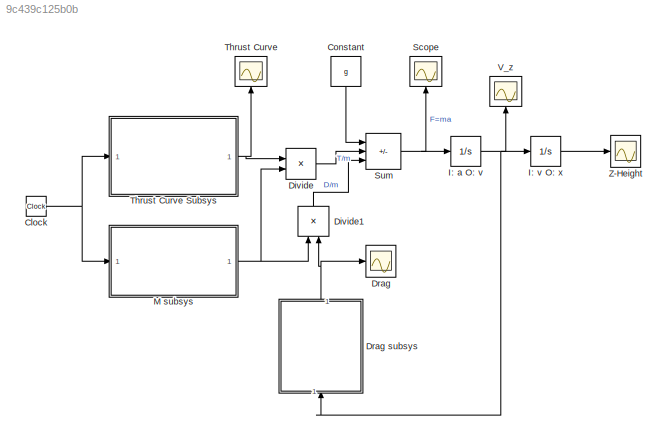
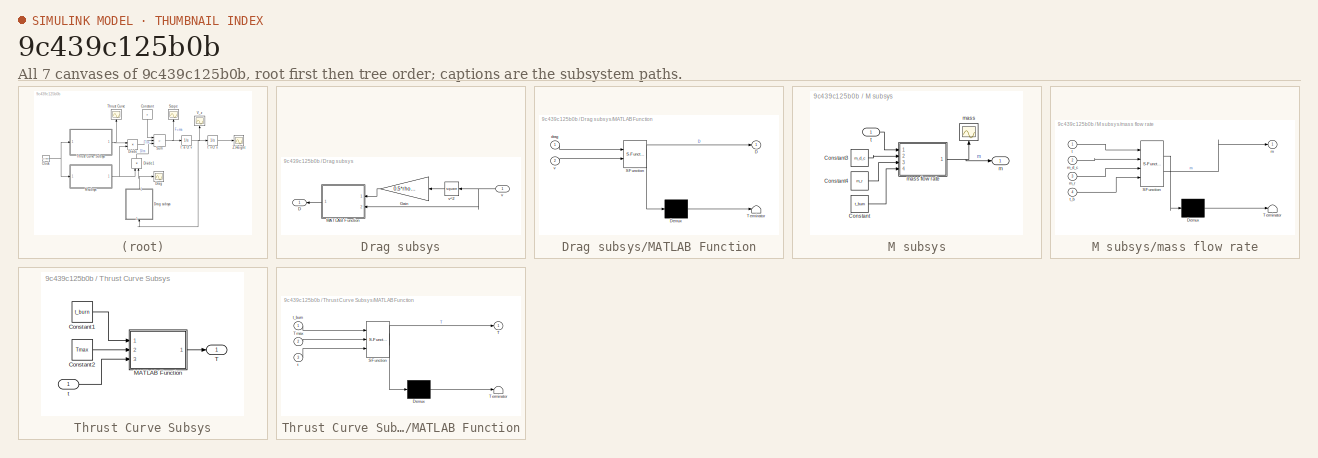
[diagram: thumbnail index - all 7 canvases of the model, root first then tree order]
MODEL slx_9c439c125b0b
KIND model
CONFIG AbsTol = auto
CONFIG EnableMultiTasking = off
CONFIG FixedStep = auto
CONFIG MaxStep = 0.54
CONFIG MinStep = auto
CONFIG RelTol = 1e-3
CONFIG SampleTimeConstraint = Unconstrained
CONFIG SolverName = VariableStepAuto
CONFIG StartTime = 0.0
CONFIG StopTime = 27
BLOCK [Clock] Clock
  Decimation = 5
BLOCK [Constant] Constant
  NameLocation = left
  Value = g
BLOCK [Product] Divide
  Inputs = */
  Ports = [2, 1]
BLOCK [Product] Divide1
  Inputs = /*
  NameLocation = right
  Ports = [2, 1]
BLOCK [Scope] Drag
  Floating = off
  NumInputPorts = 1
  Ports = [1]
  ScopeSpecificationString = Simulink.scopes.TimeScopeBlockCfg('CurrentConfiguration', extmgr.ConfigurationSet(extmgr.Configuration('Core','General UI',true),extmgr.Configuration('Core','Source UI',true),extmgr.Configuration('Sources','WiredSimulink',true,'DataLoggingVariableName','ScopeData3'),extmgr.Configuration('Visuals','Time Domain',true,'SerializedDisplays',{struct('MinYLimReal','-24741.31666','MaxYLimReal','87261.3639...<+1481ch>
BLOCK [SubSystem] Drag subsys
  NameLocation = left
  Ports = [1, 1]
  RequestExecContextInheritance = off
BLOCK [Outport] Drag subsys/D
  NameLocation = top
BLOCK [Gain] Drag subsys/Gain
  Gain = 0.5*rho*Cd*Ar
  NameLocation = top
BLOCK [SubSystem] Drag subsys/MATLAB Function
  ErrorFcn = Stateflow.Translate.translate
  NameLocation = top
  PermitHierarchicalResolution = ExplicitOnly
  Ports = [2, 1]
  RequestExecContextInheritance = off
  SFBlockType = MATLAB Function
  TreatAsAtomicUnit = on
BLOCK [Demux] Drag subsys/MATLAB Function/ Demux 
  Outputs = 1
  Ports = [1, 1]
BLOCK [S-Function] Drag subsys/MATLAB Function/ SFunction 
  EnableBusSupport = on
  FunctionName = sf_sfun
  PortCounts = [2 2]
  Ports = [2, 2]
  SFcnIsStateOwnerBlock = off
  SFunctionDeploymentMode = off
  Tag = Stateflow S-Function 3
BLOCK [Terminator] Drag subsys/MATLAB Function/ Terminator 
BLOCK [Outport] Drag subsys/MATLAB Function/D
BLOCK [Inport] Drag subsys/MATLAB Function/drag
BLOCK [Inport] Drag subsys/MATLAB Function/v
  Port = 2
BLOCK [Inport] Drag subsys/v
  NameLocation = top
BLOCK [Math] Drag subsys/v^2
  NameLocation = top
  Operator = square
  Ports = [1, 1]
BLOCK [Integrator] I: a O: v
  Ports = [1, 1]
BLOCK [Integrator] I: v O: x
  Ports = [1, 1]
BLOCK [SubSystem] M subsys
  Ports = [1, 1]
  RequestExecContextInheritance = off
BLOCK [Constant] M subsys/Constant
  Value = t_burn
BLOCK [Constant] M subsys/Constant3
  Value = m_d_c
BLOCK [Constant] M subsys/Constant4
  Value = m_r
BLOCK [Outport] M subsys/m
BLOCK [Scope] M subsys/mass
  Floating = off
  NameLocation = right
  NumInputPorts = 1
  Ports = [1]
  ScopeSpecificationString = Simulink.scopes.TimeScopeBlockCfg('CurrentConfiguration', extmgr.ConfigurationSet(extmgr.Configuration('Core','General UI',true),extmgr.Configuration('Core','Source UI',true),extmgr.Configuration('Sources','WiredSimulink',true,'DataLoggingVariableName','ScopeData1'),extmgr.Configuration('Visuals','Time Domain',true,'SerializedDisplays',{struct('MinYLimReal','0.4775','MaxYLimReal','0.5025','YLabelR...<+1412ch>
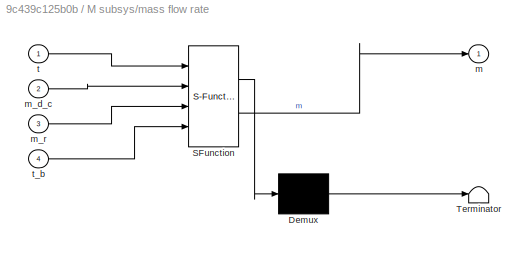
BLOCK [SubSystem] M subsys/mass flow rate
  ErrorFcn = Stateflow.Translate.translate
  PermitHierarchicalResolution = ExplicitOnly
  Ports = [4, 1]
  RequestExecContextInheritance = off
  SFBlockType = MATLAB Function
  TreatAsAtomicUnit = on
BLOCK [Demux] M subsys/mass flow rate/ Demux 
  Outputs = 1
  Ports = [1, 1]
BLOCK [S-Function] M subsys/mass flow rate/ SFunction 
  EnableBusSupport = on
  FunctionName = sf_sfun
  PortCounts = [4 2]
  Ports = [4, 2]
  SFcnIsStateOwnerBlock = off
  SFunctionDeploymentMode = off
  Tag = Stateflow S-Function 1
BLOCK [Terminator] M subsys/mass flow rate/ Terminator 
BLOCK [Outport] M subsys/mass flow rate/m
BLOCK [Inport] M subsys/mass flow rate/m_d_c
  Port = 2
BLOCK [Inport] M subsys/mass flow rate/m_r
  Port = 3
BLOCK [Inport] M subsys/mass flow rate/t
BLOCK [Inport] M subsys/mass flow rate/t_b
  Port = 4
BLOCK [Inport] M subsys/t
BLOCK [Scope] Scope
  Floating = off
  NameLocation = right
  NumInputPorts = 1
  Ports = [1]
  ScopeSpecificationString = Simulink.scopes.TimeScopeBlockCfg('CurrentConfiguration', extmgr.ConfigurationSet(extmgr.Configuration('Core','General UI',true),extmgr.Configuration('Core','Source UI',true),extmgr.Configuration('Sources','WiredSimulink',true,'DataLoggingVariableName','ScopeData2'),extmgr.Configuration('Visuals','Time Domain',true,'SerializedDisplays',{struct('MinYLimReal','-54.39714','MaxYLimReal','176.38905','Y...<+1477ch>
BLOCK [Sum] Sum
  IconShape = rectangular
  Inputs = |-++
  Ports = [3, 1]
BLOCK [Scope] Thrust Curve
  Floating = off
  NameLocation = right
  NumInputPorts = 1
  Ports = [1]
  ScopeSpecificationString = Simulink.scopes.TimeScopeBlockCfg('CurrentConfiguration', extmgr.ConfigurationSet(extmgr.Configuration('Core','General UI',true),extmgr.Configuration('Core','Source UI',true),extmgr.Configuration('Sources','WiredSimulink',true),extmgr.Configuration('Visuals','Time Domain',true,'SerializedDisplays',{struct('MinYLimReal','-10.55209','MaxYLimReal','94.96882','YLabelReal','','MinYLimMag','0.00000','Ma...<+1446ch>
BLOCK [SubSystem] Thrust Curve Subsys
  Ports = [1, 1]
  RequestExecContextInheritance = off
BLOCK [Constant] Thrust Curve Subsys/Constant1
  Value = t_burn
BLOCK [Constant] Thrust Curve Subsys/Constant2
  Value = Tmax
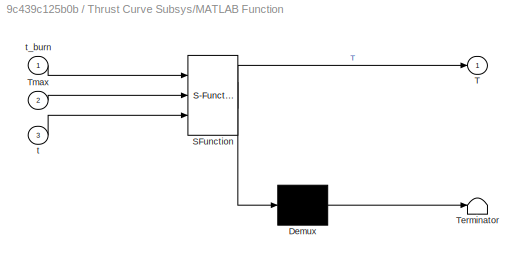
BLOCK [SubSystem] Thrust Curve Subsys/MATLAB Function
  ErrorFcn = Stateflow.Translate.translate
  NameLocation = top
  PermitHierarchicalResolution = ExplicitOnly
  Ports = [3, 1]
  RequestExecContextInheritance = off
  SFBlockType = MATLAB Function
  TreatAsAtomicUnit = on
BLOCK [Demux] Thrust Curve Subsys/MATLAB Function/ Demux 
  Outputs = 1
  Ports = [1, 1]
BLOCK [S-Function] Thrust Curve Subsys/MATLAB Function/ SFunction 
  EnableBusSupport = on
  FunctionName = sf_sfun
  PortCounts = [3 2]
  Ports = [3, 2]
  SFcnIsStateOwnerBlock = off
  SFunctionDeploymentMode = off
  Tag = Stateflow S-Function 2
BLOCK [Terminator] Thrust Curve Subsys/MATLAB Function/ Terminator 
BLOCK [Outport] Thrust Curve Subsys/MATLAB Function/T
BLOCK [Inport] Thrust Curve Subsys/MATLAB Function/Tmax
  Port = 2
BLOCK [Inport] Thrust Curve Subsys/MATLAB Function/t
  Port = 3
BLOCK [Inport] Thrust Curve Subsys/MATLAB Function/t_burn
BLOCK [Outport] Thrust Curve Subsys/T
BLOCK [Inport] Thrust Curve Subsys/t
BLOCK [Scope] V_z
  Floating = off
  NameLocation = right
  NumInputPorts = 1
  Ports = [1]
  ScopeSpecificationString = Simulink.scopes.TimeScopeBlockCfg('CurrentConfiguration', extmgr.ConfigurationSet(extmgr.Configuration('Core','General UI',true),extmgr.Configuration('Core','Source UI',true),extmgr.Configuration('Sources','WiredSimulink',true,'DataLoggingVariableName','ScopeData1'),extmgr.Configuration('Visuals','Time Domain',true,'SerializedDisplays',{struct('MinYLimReal','-162.9319','MaxYLimReal','152.03663','Y...<+1479ch>
BLOCK [Scope] Z-Height
  Floating = off
  NumInputPorts = 1
  Ports = [1]
  ScopeSpecificationString = Simulink.scopes.TimeScopeBlockCfg('CurrentConfiguration', extmgr.ConfigurationSet(extmgr.Configuration('Core','General UI',true),extmgr.Configuration('Core','Source UI',true),extmgr.Configuration('Sources','WiredSimulink',true,'DataLoggingVariableName','ScopeData1'),extmgr.Configuration('Visuals','Time Domain',true,'SerializedDisplays',{struct('MinYLimReal','-189.22555','MaxYLimReal','935.76751','...<+1483ch>
NET Clock:1 -> M subsys:1, Thrust Curve Subsys:1
LINE Constant:1 -> Sum:1
LINE Divide1:1 -> Sum:3
LINE Divide:1 -> Sum:2
LINE Drag subsys/Gain:1 -> Drag subsys/MATLAB Function:1
LINE Drag subsys/MATLAB Function:1 -> Drag subsys/D:1
NET Drag subsys/v:1 -> Drag subsys/MATLAB Function:2, Drag subsys/v^2:1
LINE Drag subsys/v^2:1 -> Drag subsys/Gain:1
NET Drag subsys:1 -> Divide1:2, Drag:1
NET I: a O: v:1 -> Drag subsys:1, I: v O: x:1, V_z:1
LINE I: v O: x:1 -> Z-Height:1
LINE M subsys/Constant3:1 -> M subsys/mass flow rate:2
LINE M subsys/Constant4:1 -> M subsys/mass flow rate:3
LINE M subsys/Constant:1 -> M subsys/mass flow rate:4
NET M subsys/mass flow rate:1 -> M subsys/m:1, M subsys/mass:1
LINE M subsys/t:1 -> M subsys/mass flow rate:1
NET M subsys:1 -> Divide1:1, Divide:2
NET Sum:1 -> I: a O: v:1, Scope:1
LINE Thrust Curve Subsys/Constant1:1 -> Thrust Curve Subsys/MATLAB Function:1
LINE Thrust Curve Subsys/Constant2:1 -> Thrust Curve Subsys/MATLAB Function:2
LINE Thrust Curve Subsys/MATLAB Function:1 -> Thrust Curve Subsys/T:1
LINE Thrust Curve Subsys/t:1 -> Thrust Curve Subsys/MATLAB Function:3
NET Thrust Curve Subsys:1 -> Divide:1, Thrust Curve:1
note: NET lines group one-source signal fan-out (src -> all destinations, sorted); 1:1 wires keep LINE
CHART M subsys/mass flow rate states=1 transitions=1
  STATE_LABEL 'eML_blk_kernel()'
  STATE_LABEL "SCRIPT:\nfunction m = m_flow(t, m_d_c, m_r, t_b)\n%Const Define in 'constants1DoF.m'\n%out mass at time t\n\n\nif t <= t_b \n    m= -m_d_c*t + m_r;\nelse\n    m = -m_d_c*t_b + m_r;\nend\n"
CHART Thrust Curve Subsys/MATLAB Function states=1 transitions=1
  STATE_LABEL 'eML_blk_kernel()'
  STATE_LABEL "SCRIPT:\nfunction T = T_of_t(t_burn, Tmax, t)\n%Approx Thurst Curve.\n%Total Burn time = 1s\n%Max Thrust 100N\n%Constants Defined in 'constants1DoF.m'\nx_hf = t_burn/2;\na = Tmax/((x_hf)*(x_hf - t_burn));\n\n\nif t<=0 || t>t_burn\n    T = 0;\nelse\n    T = a*t*(t-t_burn);\nend\n"
CHART Drag subsys/MATLAB Function states=1 transitions=1
  STATE_LABEL 'eML_blk_kernel()'
  STATE_LABEL 'SCRIPT:\nfunction D = sign_change(drag, v)\n%changes signs of Drag when appropiate. Vertical Up is positive\nif v>0\n    D = -drag;\nelse\n    D = drag;\nend\n'
CHART  states=0 transitions=0
CHART  states=0 transitions=0
CHART  states=0 transitions=0
